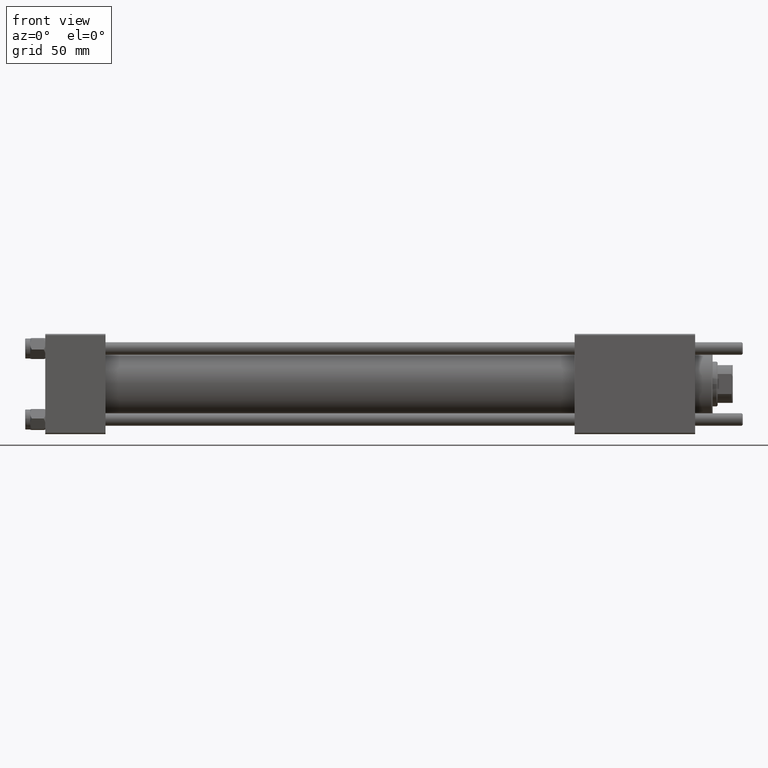
[diagram: clean part render]
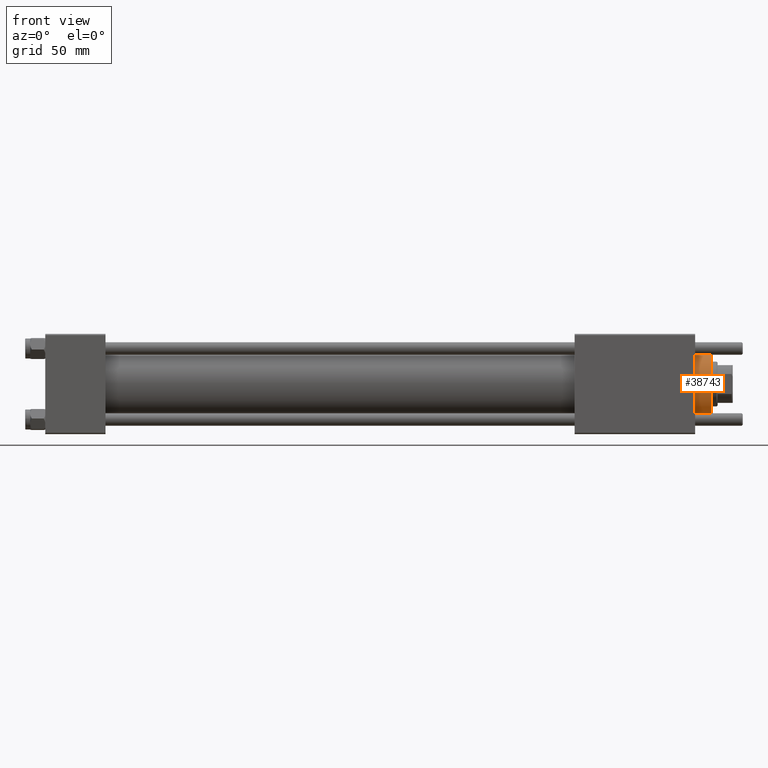
[diagram: same view with one face highlighted and labeled with its STEP entity id]
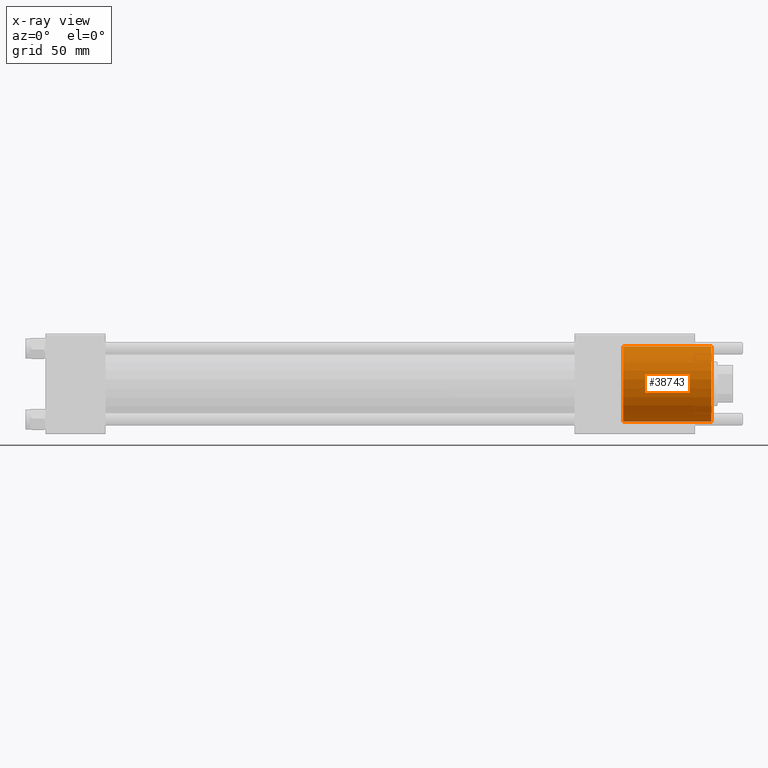
[diagram: x-ray of the same camera — body ghosted, the highlighted face saturated]
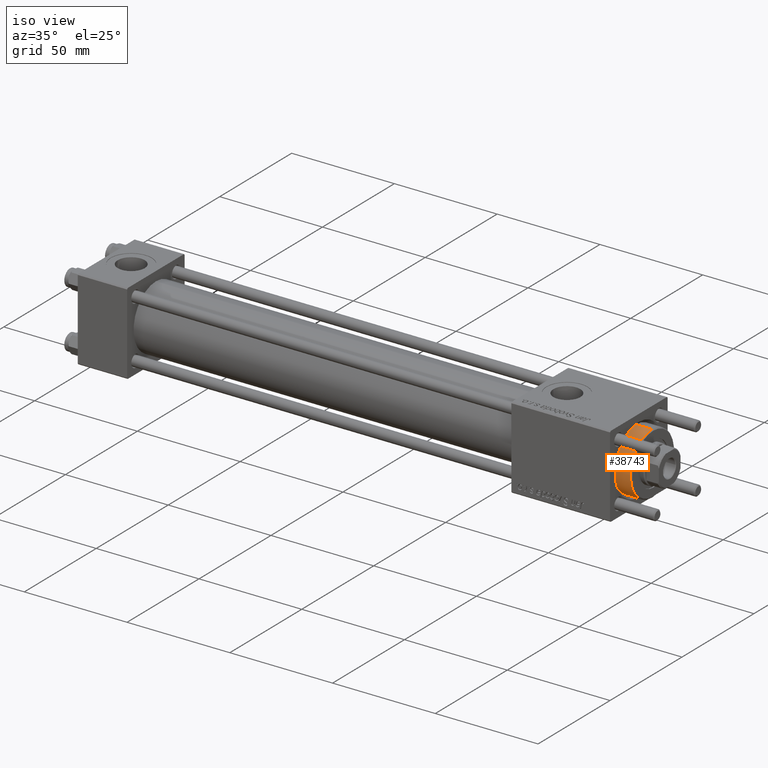
[diagram: same view with one face highlighted and labeled with its STEP entity id]
A machine part, front view. The second image highlights one B-rep face of the part: STEP entity #38743.
The next image is the same camera in x-ray: the body ghosted, the highlighted face saturated — about 0% of this face is hidden behind the body in this view.
A second angle (iso view) of the same face is appended — the face is thin or edge-on in the first view.
In plain terms, the highlighted cylindrical surface (partial cylindrical patch) has radius 15 mm, axis along (-1, -0, 0).
Its self-contained STEP definition (entity closure, byte-faithful):
#94 = DIRECTION ( 'NONE',  ( -0.000000000000000000, -0.000000000000000000, -1.000000000000000000 ) ) ;
#2680 = ORIENTED_EDGE ( 'NONE', *, *, #9407, .T. ) ;
#2958 = CARTESIAN_POINT ( 'NONE',  ( -15.00000000000000000, 0.000000000000000000, 0.000000000000000000 ) ) ;
#7585 = CARTESIAN_POINT ( 'NONE',  ( 0.000000000000000000, 0.000000000000000000, 28.69999999999999929 ) ) ;
#8469 = EDGE_LOOP ( 'NONE', ( #53873, #2680, #44666, #18380 ) ) ;
#9407 = EDGE_CURVE ( 'NONE', #56584, #52751, #52227, .T. ) ;
#9746 = EDGE_CURVE ( 'NONE', #52751, #46121, #26911, .T. ) ;
#11879 = CYLINDRICAL_SURFACE ( 'NONE', #14947, 15.00000000000000000 ) ;
#14099 = EDGE_CURVE ( 'NONE', #46121, #25143, #16703, .T. ) ;
#14947 = AXIS2_PLACEMENT_3D ( 'NONE', #7585, #94, #35062 ) ;
#16703 = CIRCLE ( 'NONE', #24922, 15.00000000000000000 ) ;
#18380 = ORIENTED_EDGE ( 'NONE', *, *, #14099, .T. ) ;
#21265 = LINE ( 'NONE', #25288, #35110 ) ;
#22992 = EDGE_CURVE ( 'NONE', #56584, #25143, #21265, .T. ) ;
#24922 = AXIS2_PLACEMENT_3D ( 'NONE', #49618, #35583, #49061 ) ;
#25143 = VERTEX_POINT ( 'NONE', #45899 ) ;
#25288 = CARTESIAN_POINT ( 'NONE',  ( 15.00000000000000000, 1.836970198721029589E-15, 28.69999999999999929 ) ) ;
#26911 = LINE ( 'NONE', #48134, #39448 ) ;
#29876 = DIRECTION ( 'NONE',  ( -0.000000000000000000, -0.000000000000000000, -1.000000000000000000 ) ) ;
#34557 = CARTESIAN_POINT ( 'NONE',  ( -15.00000000000000000, 0.000000000000000000, 35.19999999999999574 ) ) ;
#35062 = DIRECTION ( 'NONE',  ( -1.000000000000000000, 0.000000000000000000, 0.000000000000000000 ) ) ;
#35110 = VECTOR ( 'NONE', #29876, 1000.000000000000000 ) ;
#35583 = DIRECTION ( 'NONE',  ( 0.000000000000000000, 0.000000000000000000, 1.000000000000000000 ) ) ;
#38743 = ADVANCED_FACE ( 'NONE', ( #51139 ), #11879, .T. ) ;
#39448 = VECTOR ( 'NONE', #40076, 1000.000000000000000 ) ;
#40076 = DIRECTION ( 'NONE',  ( -0.000000000000000000, -0.000000000000000000, -1.000000000000000000 ) ) ;
#41213 = CARTESIAN_POINT ( 'NONE',  ( 15.00000000000000000, 1.836970198721029589E-15, 35.19999999999999574 ) ) ;
#41246 = AXIS2_PLACEMENT_3D ( 'NONE', #51353, #47057, #50789 ) ;
#44666 = ORIENTED_EDGE ( 'NONE', *, *, #9746, .T. ) ;
#45899 = CARTESIAN_POINT ( 'NONE',  ( 15.00000000000000000, 1.836970198721029589E-15, 0.000000000000000000 ) ) ;
#46121 = VERTEX_POINT ( 'NONE', #2958 ) ;
#47057 = DIRECTION ( 'NONE',  ( 0.000000000000000000, 0.000000000000000000, -1.000000000000000000 ) ) ;
#48134 = CARTESIAN_POINT ( 'NONE',  ( -15.00000000000000000, 0.000000000000000000, 28.69999999999999929 ) ) ;
#49061 = DIRECTION ( 'NONE',  ( 1.000000000000000000, 0.000000000000000000, 0.000000000000000000 ) ) ;
#49618 = CARTESIAN_POINT ( 'NONE',  ( 0.000000000000000000, 0.000000000000000000, 0.000000000000000000 ) ) ;
#50789 = DIRECTION ( 'NONE',  ( 1.000000000000000000, 0.000000000000000000, 0.000000000000000000 ) ) ;
#51139 = FACE_OUTER_BOUND ( 'NONE', #8469, .T. ) ;
#51353 = CARTESIAN_POINT ( 'NONE',  ( 0.000000000000000000, 0.000000000000000000, 35.19999999999999574 ) ) ;
#52227 = CIRCLE ( 'NONE', #41246, 15.00000000000000000 ) ;
#52751 = VERTEX_POINT ( 'NONE', #34557 ) ;
#53873 = ORIENTED_EDGE ( 'NONE', *, *, #22992, .F. ) ;
#56584 = VERTEX_POINT ( 'NONE', #41213 ) ;